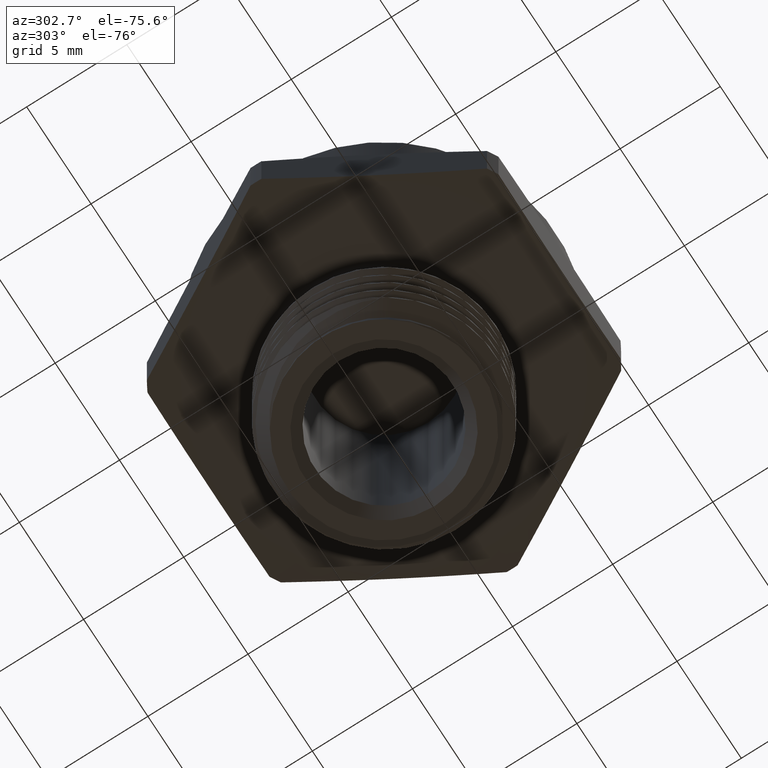
[diagram: clean part render]
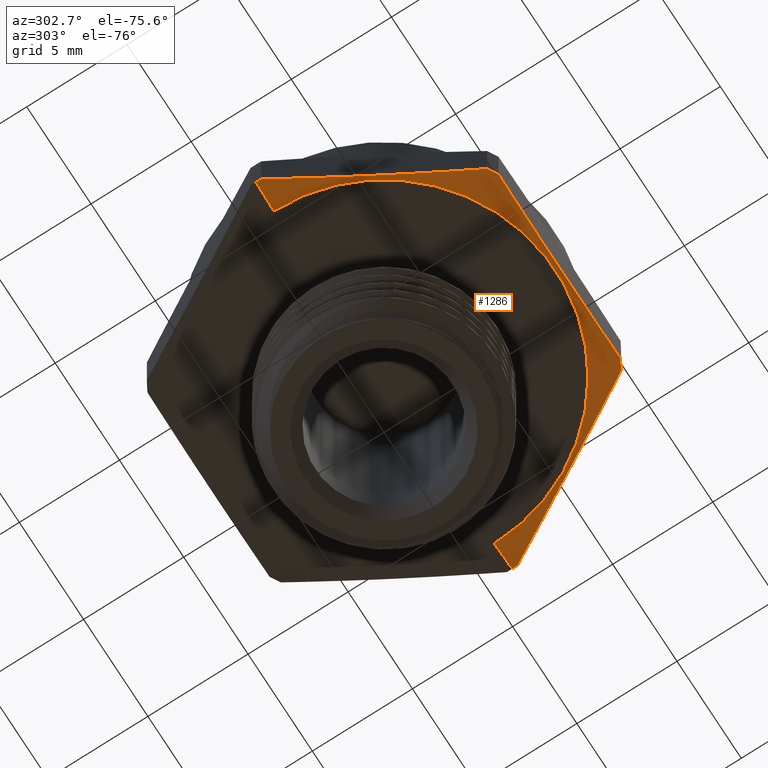
[diagram: same view with one face highlighted and labeled with its STEP entity id]
A machine part, auxiliary view. The second image highlights one B-rep face of the part: STEP entity #1286.
In plain terms, the highlighted conical surface has half-angle 78 deg.
Its self-contained STEP definition (entity closure, byte-faithful):
#152 = EDGE_CURVE ( 'NONE', #1654, #2321, #2743, .T. ) ;
#157 = EDGE_CURVE ( 'NONE', #350, #347, #2362, .T. ) ;
#158 = EDGE_CURVE ( 'NONE', #358, #350, #2746, .T. ) ;
#163 = EDGE_CURVE ( 'NONE', #347, #1640, #2755, .T. ) ;
#170 = EDGE_CURVE ( 'NONE', #1646, #372, #2766, .T. ) ;
#175 = EDGE_CURVE ( 'NONE', #1640, #1646, #2365, .T. ) ;
#176 = EDGE_CURVE ( 'NONE', #372, #351, #2366, .T. ) ;
#224 = EDGE_CURVE ( 'NONE', #351, #370, #2817, .T. ) ;
#256 = EDGE_CURVE ( 'NONE', #1654, #358, #2852, .T. ) ;
#264 = EDGE_CURVE ( 'NONE', #2321, #370, #2859, .T. ) ;
#314 = ORIENTED_EDGE ( 'NONE', *, *, #158, .T. ) ;
#315 = ORIENTED_EDGE ( 'NONE', *, *, #157, .T. ) ;
#316 = ORIENTED_EDGE ( 'NONE', *, *, #163, .T. ) ;
#317 = ORIENTED_EDGE ( 'NONE', *, *, #175, .T. ) ;
#318 = ORIENTED_EDGE ( 'NONE', *, *, #170, .T. ) ;
#319 = ORIENTED_EDGE ( 'NONE', *, *, #176, .T. ) ;
#320 = ORIENTED_EDGE ( 'NONE', *, *, #224, .T. ) ;
#347 = VERTEX_POINT ( 'NONE', #997 ) ;
#350 = VERTEX_POINT ( 'NONE', #1017 ) ;
#351 = VERTEX_POINT ( 'NONE', #1018 ) ;
#358 = VERTEX_POINT ( 'NONE', #1011 ) ;
#370 = VERTEX_POINT ( 'NONE', #1033 ) ;
#372 = VERTEX_POINT ( 'NONE', #1035 ) ;
#386 = AXIS2_PLACEMENT_3D ( 'NONE', #2409, #2408, #2407 ) ;
#388 = AXIS2_PLACEMENT_3D ( 'NONE', #2389, #2388, #2387 ) ;
#391 = AXIS2_PLACEMENT_3D ( 'NONE', #2374, #1070, #1267 ) ;
#392 = AXIS2_PLACEMENT_3D ( 'NONE', #1207, #1153, #1154 ) ;
#417 = AXIS2_PLACEMENT_3D ( 'NONE', #783, #784, #785 ) ;
#455 = AXIS2_PLACEMENT_3D ( 'NONE', #1715, #1716, #1714 ) ;
#783 = CARTESIAN_POINT ( 'NONE',  ( 1.428346814576530300E-018, 0.0000000000000000000, 0.01166333685411177200 ) ) ;
#784 = DIRECTION ( 'NONE',  ( -1.224646799147349800E-016, -0.0000000000000000000, -1.000000000000000000 ) ) ;
#785 = DIRECTION ( 'NONE',  ( -1.000000000000000000, 0.0000000000000000000, 1.251055960969031300E-016 ) ) ;
#943 = CARTESIAN_POINT ( 'NONE',  ( 0.3374999999999998000, 0.0000000000000000000, 0.0000000000000000000 ) ) ;
#944 = DIRECTION ( 'NONE',  ( 0.9781476007338040200, 0.0000000000000000000, 0.2079116908177665300 ) ) ;
#948 = DIRECTION ( 'NONE',  ( -0.9781476007338040200, 1.197885328332316500E-016, 0.2079116908177667500 ) ) ;
#954 = CARTESIAN_POINT ( 'NONE',  ( -0.3374999999999998000, 4.133182947122314700E-017, 8.266365894244606000E-017 ) ) ;
#997 = CARTESIAN_POINT ( 'NONE',  ( 0.2053301958694189500, -0.3343576684260969300, 0.01166333685411172200 ) ) ;
#1011 = CARTESIAN_POINT ( 'NONE',  ( 0.3923716857408415800, 0.0000000000000000000, 0.01166333685411172600 ) ) ;
#1017 = CARTESIAN_POINT ( 'NONE',  ( 0.3922273327418435700, -0.01064233157390225900, 0.01166333685411172200 ) ) ;
#1018 = CARTESIAN_POINT ( 'NONE',  ( -0.3922273327418435700, -0.01064233157390253300, 0.01166333685411172200 ) ) ;
#1033 = CARTESIAN_POINT ( 'NONE',  ( -0.3923716857408415800, 0.0000000000000000000, 0.01166333685411182100 ) ) ;
#1035 = CARTESIAN_POINT ( 'NONE',  ( -0.2053301958694182500, -0.3343576684260974300, 0.01166333685411179700 ) ) ;
#1070 = DIRECTION ( 'NONE',  ( -1.224646799147349800E-016, -0.0000000000000000000, -1.000000000000000000 ) ) ;
#1074 = CARTESIAN_POINT ( 'NONE',  ( -0.1868971368724239600, -0.3450000000000002000, 0.01166333685411172200 ) ) ;
#1079 = CARTESIAN_POINT ( 'NONE',  ( -0.1245142234371458700, -0.3450000000000003100, 0.005960855203607171200 ) ) ;
#1080 = CARTESIAN_POINT ( 'NONE',  ( -0.1557582012397537900, -0.3450000000000002000, 0.008510632343947957500 ) ) ;
#1084 = CARTESIAN_POINT ( 'NONE',  ( -0.03095420464638832700, -0.3450000000000001400, 0.001590354289315586200 ) ) ;
#1085 = CARTESIAN_POINT ( 'NONE',  ( -0.06212854885922138700, -0.3450000000000002000, 0.002498373249121951700 ) ) ;
#1089 = CARTESIAN_POINT ( 'NONE',  ( -0.2987787643056308800, -0.1725000000000000400, -0.002167435581555915500 ) ) ;
#1093 = CARTESIAN_POINT ( 'NONE',  ( 0.06250737579836367100, -0.3450000000000000800, 0.001601850898061568600 ) ) ;
#1126 = CARTESIAN_POINT ( 'NONE',  ( 0.1247306374619809300, -0.3450000000000001400, 0.005369203830927397500 ) ) ;
#1134 = CARTESIAN_POINT ( 'NONE',  ( 0.1868971368724241000, -0.3450000000000002000, 0.01166333685411174800 ) ) ;
#1153 = DIRECTION ( 'NONE',  ( -1.224646799147349800E-016, -0.0000000000000000000, -1.000000000000000000 ) ) ;
#1154 = DIRECTION ( 'NONE',  ( -1.000000000000000000, 0.0000000000000000000, 1.251055960969031300E-016 ) ) ;
#1207 = CARTESIAN_POINT ( 'NONE',  ( 1.428346814576530300E-018, 0.0000000000000000000, 0.01166333685411177200 ) ) ;
#1263 = CARTESIAN_POINT ( 'NONE',  ( -0.3922273327418435700, -0.01064233157390253300, 0.01166333685411172200 ) ) ;
#1264 = CARTESIAN_POINT ( 'NONE',  ( -0.3610778099297727900, -0.06459488771593505100, 0.005355784006606456400 ) ) ;
#1265 = CARTESIAN_POINT ( 'NONE',  ( -0.2364797186814891800, -0.2804051122840648900, 0.005355784006606455600 ) ) ;
#1267 = DIRECTION ( 'NONE',  ( -1.000000000000000000, 0.0000000000000000000, 1.251055960969031300E-016 ) ) ;
#1269 = CARTESIAN_POINT ( 'NONE',  ( -0.2053301958694182500, -0.3343576684260974300, 0.01166333685411179700 ) ) ;
#1286 = ADVANCED_FACE ( 'NONE', ( #2905 ), #2912, .T. ) ;
#1527 = CARTESIAN_POINT ( 'NONE',  ( 0.3374999999999998000, 0.0000000000000000000, 0.0000000000000000000 ) ) ;
#1533 = CARTESIAN_POINT ( 'NONE',  ( 0.1868971368724241000, -0.3450000000000002000, 0.01166333685411174800 ) ) ;
#1537 = CARTESIAN_POINT ( 'NONE',  ( -0.1868971368724239600, -0.3450000000000002000, 0.01166333685411172200 ) ) ;
#1564 = CARTESIAN_POINT ( 'NONE',  ( -0.3374999999999998000, 4.133182947122314700E-017, 8.266365894244606000E-017 ) ) ;
#1640 = VERTEX_POINT ( 'NONE', #1533 ) ;
#1646 = VERTEX_POINT ( 'NONE', #1537 ) ;
#1654 = VERTEX_POINT ( 'NONE', #1527 ) ;
#1714 = DIRECTION ( 'NONE',  ( 1.000000000000000000, 0.0000000000000000000, -1.224646799147349800E-016 ) ) ;
#1715 = CARTESIAN_POINT ( 'NONE',  ( 5.061689266483738000E-033, 0.0000000000000000000, 4.133182947122303000E-017 ) ) ;
#1716 = DIRECTION ( 'NONE',  ( 1.224646799147349800E-016, 0.0000000000000000000, 1.000000000000000000 ) ) ;
#2321 = VERTEX_POINT ( 'NONE', #1564 ) ;
#2362 = B_SPLINE_CURVE_WITH_KNOTS ( 'NONE', 3,
 ( #2393, #2394, #2395, #2392, #2391 ),
 .UNSPECIFIED., .F., .F.,
 ( 4, 1, 4 ),
 ( 1.975061655743143800E-006, 0.004749162338215334600, 0.009496349614774924800 ),
 .UNSPECIFIED. ) ;
#2365 = B_SPLINE_CURVE_WITH_KNOTS ( 'NONE', 3,
 ( #1134, #1126, #1093, #1084, #1085, #1079, #1080, #1074 ),
 .UNSPECIFIED., .F., .F.,
 ( 4, 2, 2, 4 ),
 ( 0.01943854796867405800, 0.02419972156358916900, 0.02658030836104672400, 0.02896089515850428000 ),
 .UNSPECIFIED. ) ;
#2366 = B_SPLINE_CURVE_WITH_KNOTS ( 'NONE', 3,
 ( #1269, #1265, #1089, #1264, #1263 ),
 .UNSPECIFIED., .F., .F.,
 ( 4, 1, 4 ),
 ( 1.975061656115898400E-006, 0.004749162338215714500, 0.009496349614775313400 ),
 .UNSPECIFIED. ) ;
#2374 = CARTESIAN_POINT ( 'NONE',  ( 1.428346814576530300E-018, 0.0000000000000000000, 0.01166333685411177200 ) ) ;
#2387 = DIRECTION ( 'NONE',  ( -1.000000000000000000, 0.0000000000000000000, 1.251055960969031300E-016 ) ) ;
#2388 = DIRECTION ( 'NONE',  ( -1.224646799147349800E-016, -0.0000000000000000000, -1.000000000000000000 ) ) ;
#2389 = CARTESIAN_POINT ( 'NONE',  ( 1.428346814576530300E-018, 0.0000000000000000000, 0.01166333685411177200 ) ) ;
#2391 = CARTESIAN_POINT ( 'NONE',  ( 0.2053301958694189500, -0.3343576684260969300, 0.01166333685411172200 ) ) ;
#2392 = CARTESIAN_POINT ( 'NONE',  ( 0.2364797186814898100, -0.2804051122840645600, 0.005355784006606400900 ) ) ;
#2393 = CARTESIAN_POINT ( 'NONE',  ( 0.3922273327418435700, -0.01064233157390225900, 0.01166333685411172200 ) ) ;
#2394 = CARTESIAN_POINT ( 'NONE',  ( 0.3610778099297727900, -0.06459488771593474600, 0.005355784006606378400 ) ) ;
#2395 = CARTESIAN_POINT ( 'NONE',  ( 0.2987787643056312700, -0.1724999999999997100, -0.002167435581555948000 ) ) ;
#2407 = DIRECTION ( 'NONE',  ( -1.000000000000000000, 0.0000000000000000000, 1.224646799147349800E-016 ) ) ;
#2408 = DIRECTION ( 'NONE',  ( -1.224646799147349800E-016, -0.0000000000000000000, -1.000000000000000000 ) ) ;
#2409 = CARTESIAN_POINT ( 'NONE',  ( 5.061689266483738000E-033, 0.0000000000000000000, 4.133182947122303000E-017 ) ) ;
#2619 = ORIENTED_EDGE ( 'NONE', *, *, #264, .F. ) ;
#2620 = ORIENTED_EDGE ( 'NONE', *, *, #152, .F. ) ;
#2621 = ORIENTED_EDGE ( 'NONE', *, *, #256, .T. ) ;
#2683 = EDGE_LOOP ( 'NONE', ( #2619, #2620, #2621, #314, #315, #316, #317, #318, #319, #320 ) ) ;
#2743 = CIRCLE ( 'NONE', #386, 0.3374999999999998000 ) ;
#2746 = CIRCLE ( 'NONE', #388, 0.3923716857408415800 ) ;
#2755 = CIRCLE ( 'NONE', #391, 0.3923716857408415800 ) ;
#2766 = CIRCLE ( 'NONE', #392, 0.3923716857408415800 ) ;
#2817 = CIRCLE ( 'NONE', #417, 0.3923716857408415800 ) ;
#2852 = LINE ( 'NONE', #943, #2854 ) ;
#2854 = VECTOR ( 'NONE', #944, 39.37007874015748100 ) ;
#2859 = LINE ( 'NONE', #954, #2860 ) ;
#2860 = VECTOR ( 'NONE', #948, 39.37007874015748100 ) ;
#2905 = FACE_OUTER_BOUND ( 'NONE', #2683, .T. ) ;
#2912 = CONICAL_SURFACE ( 'NONE', #455, 0.3374999999999998000, 1.361356816555569600 ) ;